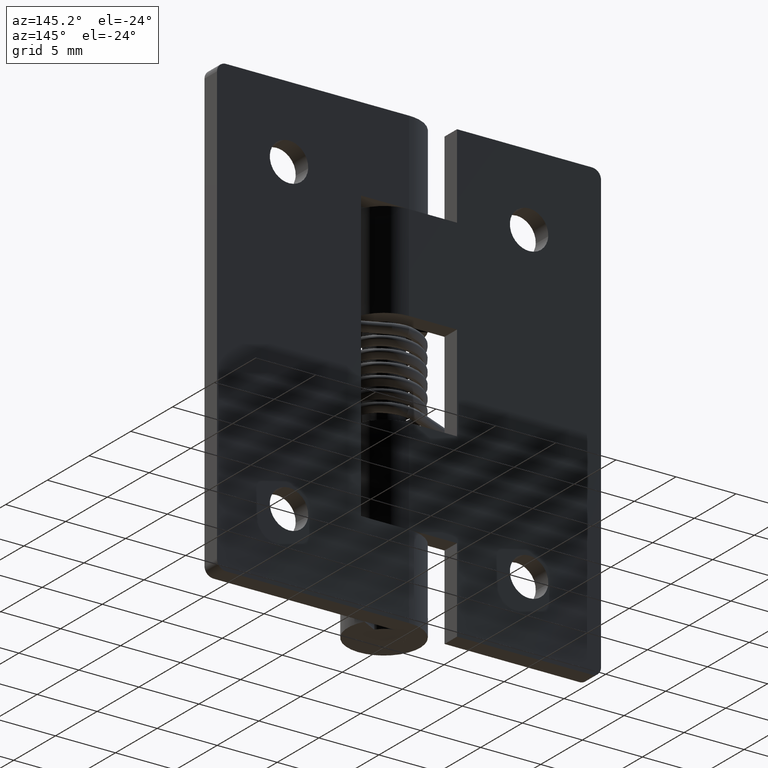
[diagram: clean part render]
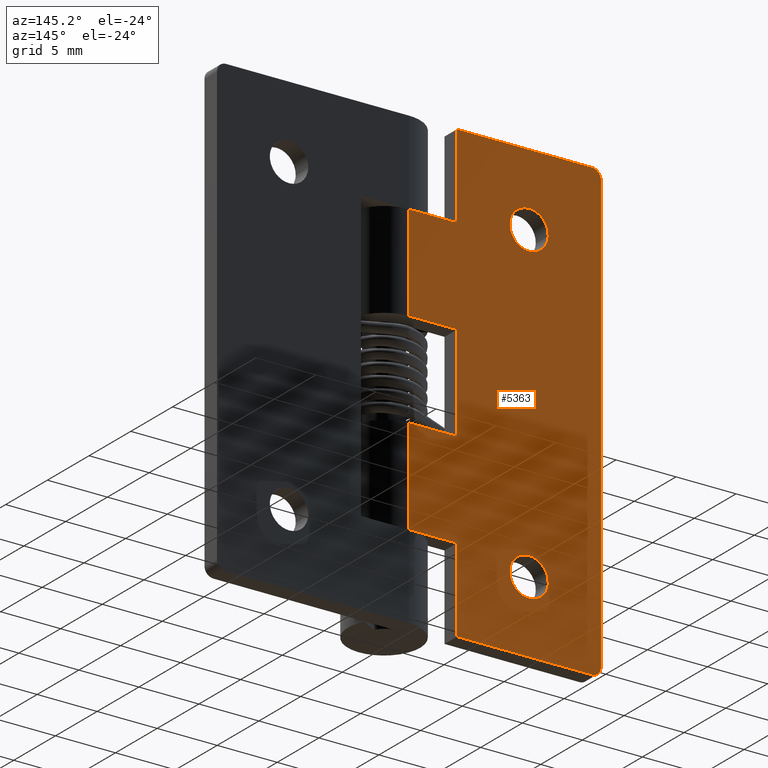
[diagram: same view with one face highlighted and labeled with its STEP entity id]
A machine part, auxiliary view. The second image highlights one B-rep face of the part: STEP entity #5363.
In plain terms, the highlighted face is a freeform B-spline surface patch.
Its self-contained STEP definition (entity closure, byte-faithful):
#4223=CARTESIAN_POINT('',(-8.411184757826064,3.0,6.188854775517521));
#4224=VERTEX_POINT('',#4223);
#4230=CARTESIAN_POINT('',(-10.0,3.0,4.400000000000000));
#4231=VERTEX_POINT('',#4230);
#4232=CARTESIAN_POINT('',(-8.411184757826064,3.000000000000001,6.188854775517521));
#4233=CARTESIAN_POINT('',(-8.400000000000000,3.0,6.094758591510471));
#4234=CARTESIAN_POINT('',(-8.400000000000000,3.0,6.0));
#4235=CARTESIAN_POINT('',(-8.400000000000000,3.0,4.400000000000001));
#4236=CARTESIAN_POINT('',(-10.0,3.0,4.400000000000000));
#4244=(BOUNDED_CURVE()B_SPLINE_CURVE(2,(#4232,#4233,#4234,#4235,#4236),.UNSPECIFIED.,.F.,.U.)B_SPLINE_CURVE_WITH_KNOTS((3,2,3),(0.229562473501453,0.250000000000000,0.500000000000000),.UNSPECIFIED.)CURVE()GEOMETRIC_REPRESENTATION_ITEM()RATIONAL_B_SPLINE_CURVE((0.956026754160070,0.976055948317021,1.0,0.707106781186548,1.0))REPRESENTATION_ITEM(''));
#4245=EDGE_CURVE('',#4224,#4231,#4244,.T.);
#4247=CARTESIAN_POINT('',(-11.597015677470001,3.0,5.902322336662665));
#4248=VERTEX_POINT('',#4247);
#4249=CARTESIAN_POINT('',(-10.0,3.0,4.400000000000000));
#4250=CARTESIAN_POINT('',(-11.505129706895083,3.000000000000000,4.400000000000000));
#4251=CARTESIAN_POINT('',(-11.597015677469999,3.0,5.902322336662665));
#4259=(BOUNDED_CURVE()B_SPLINE_CURVE(2,(#4249,#4250,#4251),.UNSPECIFIED.,.F.,.U.)B_SPLINE_CURVE_WITH_KNOTS((3,3),(0.500000000000000,0.739332962224343),.UNSPECIFIED.)CURVE()GEOMETRIC_REPRESENTATION_ITEM()RATIONAL_B_SPLINE_CURVE((1.0,0.719603993303815,0.976072041635428))REPRESENTATION_ITEM(''));
#4260=EDGE_CURVE('',#4231,#4248,#4259,.T.);
#4334=CARTESIAN_POINT('',(-10.0,3.0,7.600000000000000));
#4335=VERTEX_POINT('',#4334);
#4336=CARTESIAN_POINT('',(-11.597015677469999,3.0,5.902322336662665));
#4337=CARTESIAN_POINT('',(-11.599999999999998,3.000000000000000,5.951115578640466));
#4338=CARTESIAN_POINT('',(-11.600000000000000,3.0,6.0));
#4339=CARTESIAN_POINT('',(-11.600000000000001,3.0,7.600000000000000));
#4340=CARTESIAN_POINT('',(-10.0,3.0,7.600000000000000));
#4348=(BOUNDED_CURVE()B_SPLINE_CURVE(2,(#4336,#4337,#4338,#4339,#4340),.UNSPECIFIED.,.F.,.U.)B_SPLINE_CURVE_WITH_KNOTS((3,2,3),(0.739332962224343,0.750000000000000,1.0),.UNSPECIFIED.)CURVE()GEOMETRIC_REPRESENTATION_ITEM()RATIONAL_B_SPLINE_CURVE((0.976072041635428,0.987502787882733,1.0,0.707106781186548,1.0))REPRESENTATION_ITEM(''));
#4349=EDGE_CURVE('',#4248,#4335,#4348,.T.);
#4351=CARTESIAN_POINT('',(-10.0,3.0,7.600000000000000));
#4352=CARTESIAN_POINT('',(-8.578920758597983,3.000000000000000,7.599999999999999));
#4353=CARTESIAN_POINT('',(-8.411184757826064,3.0,6.188854775517521));
#4361=(BOUNDED_CURVE()B_SPLINE_CURVE(2,(#4351,#4352,#4353),.UNSPECIFIED.,.F.,.U.)B_SPLINE_CURVE_WITH_KNOTS((3,3),(0.0,0.229562473501453),.UNSPECIFIED.)CURVE()GEOMETRIC_REPRESENTATION_ITEM()RATIONAL_B_SPLINE_CURVE((1.0,0.731050832869526,0.956026754160070))REPRESENTATION_ITEM(''));
#4362=EDGE_CURVE('',#4335,#4224,#4361,.T.);
#4409=CARTESIAN_POINT('',(-8.411184757826064,3.0,32.188854775517527));
#4410=VERTEX_POINT('',#4409);
#4416=CARTESIAN_POINT('',(-10.0,3.0,30.399999999999999));
#4417=VERTEX_POINT('',#4416);
#4418=CARTESIAN_POINT('',(-8.411184757826064,3.000000000000000,32.188854775517527));
#4419=CARTESIAN_POINT('',(-8.400000000000000,3.000000000000000,32.094758591510470));
#4420=CARTESIAN_POINT('',(-8.400000000000000,3.0,32.0));
#4421=CARTESIAN_POINT('',(-8.400000000000000,3.0,30.400000000000002));
#4422=CARTESIAN_POINT('',(-10.0,3.0,30.399999999999999));
#4430=(BOUNDED_CURVE()B_SPLINE_CURVE(2,(#4418,#4419,#4420,#4421,#4422),.UNSPECIFIED.,.F.,.U.)B_SPLINE_CURVE_WITH_KNOTS((3,2,3),(0.229562473501453,0.250000000000000,0.500000000000000),.UNSPECIFIED.)CURVE()GEOMETRIC_REPRESENTATION_ITEM()RATIONAL_B_SPLINE_CURVE((0.956026754160069,0.976055948317021,1.0,0.707106781186548,1.0))REPRESENTATION_ITEM(''));
#4431=EDGE_CURVE('',#4410,#4417,#4430,.T.);
#4433=CARTESIAN_POINT('',(-11.597015677470001,3.0,31.902322336662671));
#4434=VERTEX_POINT('',#4433);
#4435=CARTESIAN_POINT('',(-10.0,3.0,30.399999999999999));
#4436=CARTESIAN_POINT('',(-11.505129706895083,3.000000000000000,30.399999999999999));
#4437=CARTESIAN_POINT('',(-11.597015677469999,3.0,31.902322336662671));
#4445=(BOUNDED_CURVE()B_SPLINE_CURVE(2,(#4435,#4436,#4437),.UNSPECIFIED.,.F.,.U.)B_SPLINE_CURVE_WITH_KNOTS((3,3),(0.500000000000000,0.739332962224343),.UNSPECIFIED.)CURVE()GEOMETRIC_REPRESENTATION_ITEM()RATIONAL_B_SPLINE_CURVE((1.0,0.719603993303815,0.976072041635428))REPRESENTATION_ITEM(''));
#4446=EDGE_CURVE('',#4417,#4434,#4445,.T.);
#4520=CARTESIAN_POINT('',(-10.0,3.0,33.600000000000001));
#4521=VERTEX_POINT('',#4520);
#4522=CARTESIAN_POINT('',(-11.597015677469997,3.000000000000000,31.902322336662671));
#4523=CARTESIAN_POINT('',(-11.600000000000001,3.000000000000000,31.951115578640469));
#4524=CARTESIAN_POINT('',(-11.600000000000000,3.0,32.0));
#4525=CARTESIAN_POINT('',(-11.600000000000001,3.0,33.600000000000001));
#4526=CARTESIAN_POINT('',(-10.0,3.0,33.600000000000001));
#4534=(BOUNDED_CURVE()B_SPLINE_CURVE(2,(#4522,#4523,#4524,#4525,#4526),.UNSPECIFIED.,.F.,.U.)B_SPLINE_CURVE_WITH_KNOTS((3,2,3),(0.739332962224344,0.750000000000000,1.0),.UNSPECIFIED.)CURVE()GEOMETRIC_REPRESENTATION_ITEM()RATIONAL_B_SPLINE_CURVE((0.976072041635429,0.987502787882733,1.0,0.707106781186548,1.0))REPRESENTATION_ITEM(''));
#4535=EDGE_CURVE('',#4434,#4521,#4534,.T.);
#4537=CARTESIAN_POINT('',(-10.0,3.0,33.600000000000001));
#4538=CARTESIAN_POINT('',(-8.578920758597985,3.000000000000000,33.599999999999994));
#4539=CARTESIAN_POINT('',(-8.411184757826064,3.000000000000000,32.188854775517527));
#4547=(BOUNDED_CURVE()B_SPLINE_CURVE(2,(#4537,#4538,#4539),.UNSPECIFIED.,.F.,.U.)B_SPLINE_CURVE_WITH_KNOTS((3,3),(0.0,0.229562473501453),.UNSPECIFIED.)CURVE()GEOMETRIC_REPRESENTATION_ITEM()RATIONAL_B_SPLINE_CURVE((1.0,0.731050832869527,0.956026754160069))REPRESENTATION_ITEM(''));
#4548=EDGE_CURVE('',#4521,#4410,#4547,.T.);
#4561=CARTESIAN_POINT('',(0.0,3.0,15.0));
#4562=VERTEX_POINT('',#4561);
#4582=CARTESIAN_POINT('',(-4.0,3.0,15.0));
#4583=VERTEX_POINT('',#4582);
#4584=CARTESIAN_POINT('',(0.0,3.0,15.0));
#4585=CARTESIAN_POINT('',(-4.0,3.0,15.0));
#4586=QUASI_UNIFORM_CURVE('',1,(#4584,#4585),.UNSPECIFIED.,.F.,.U.);
#4587=EDGE_CURVE('',#4562,#4583,#4586,.T.);
#4646=CARTESIAN_POINT('',(-4.0,3.0,23.0));
#4647=VERTEX_POINT('',#4646);
#4653=CARTESIAN_POINT('',(0.0,3.0,23.0));
#4654=VERTEX_POINT('',#4653);
#4655=CARTESIAN_POINT('',(-4.0,3.0,23.0));
#4656=CARTESIAN_POINT('',(0.0,3.0,23.0));
#4657=QUASI_UNIFORM_CURVE('',1,(#4655,#4656),.UNSPECIFIED.,.F.,.U.);
#4658=EDGE_CURVE('',#4647,#4654,#4657,.T.);
#4721=CARTESIAN_POINT('',(-4.0,3.0,15.0));
#4722=CARTESIAN_POINT('',(-4.0,3.0,23.0));
#4723=QUASI_UNIFORM_CURVE('',1,(#4721,#4722),.UNSPECIFIED.,.F.,.U.);
#4724=EDGE_CURVE('',#4583,#4647,#4723,.T.);
#4744=CARTESIAN_POINT('',(-4.0,3.0,31.0));
#4745=VERTEX_POINT('',#4744);
#4751=CARTESIAN_POINT('',(-4.0,3.0,38.0));
#4752=VERTEX_POINT('',#4751);
#4753=CARTESIAN_POINT('',(-4.0,3.0,31.0));
#4754=CARTESIAN_POINT('',(-4.0,3.0,38.0));
#4755=QUASI_UNIFORM_CURVE('',1,(#4753,#4754),.UNSPECIFIED.,.F.,.U.);
#4756=EDGE_CURVE('',#4745,#4752,#4755,.T.);
#4773=CARTESIAN_POINT('',(0.0,3.0,31.0));
#4774=VERTEX_POINT('',#4773);
#4794=CARTESIAN_POINT('',(0.0,3.0,31.0));
#4795=CARTESIAN_POINT('',(-4.0,3.0,31.0));
#4796=QUASI_UNIFORM_CURVE('',1,(#4794,#4795),.UNSPECIFIED.,.F.,.U.);
#4797=EDGE_CURVE('',#4774,#4745,#4796,.T.);
#4850=CARTESIAN_POINT('',(-4.0,3.0,6.999992000000000));
#4851=VERTEX_POINT('',#4850);
#4857=CARTESIAN_POINT('',(0.0,3.0,6.999992000000000));
#4858=VERTEX_POINT('',#4857);
#4859=CARTESIAN_POINT('',(-4.0,3.0,6.999992000000000));
#4860=CARTESIAN_POINT('',(0.0,3.0,6.999992000000000));
#4861=QUASI_UNIFORM_CURVE('',1,(#4859,#4860),.UNSPECIFIED.,.F.,.U.);
#4862=EDGE_CURVE('',#4851,#4858,#4861,.T.);
#4926=CARTESIAN_POINT('',(-4.0,3.0,0.0));
#4927=VERTEX_POINT('',#4926);
#4933=CARTESIAN_POINT('',(-4.0,3.0,0.0));
#4934=CARTESIAN_POINT('',(-4.0,3.0,6.999992000000000));
#4935=QUASI_UNIFORM_CURVE('',1,(#4933,#4934),.UNSPECIFIED.,.F.,.U.);
#4936=EDGE_CURVE('',#4927,#4851,#4935,.T.);
#4973=CARTESIAN_POINT('',(-15.250000000000000,3.0,38.0));
#4974=VERTEX_POINT('',#4973);
#4980=CARTESIAN_POINT('',(-16.0,3.0,37.250000000000000));
#4981=VERTEX_POINT('',#4980);
#4982=CARTESIAN_POINT('',(-15.250000000000000,3.0,38.0));
#4983=CARTESIAN_POINT('',(-15.999999999999998,3.0,38.0));
#4984=CARTESIAN_POINT('',(-16.0,3.0,37.250000000000000));
#4992=(BOUNDED_CURVE()B_SPLINE_CURVE(2,(#4982,#4983,#4984),.UNSPECIFIED.,.F.,.U.)CURVE()GEOMETRIC_REPRESENTATION_ITEM()QUASI_UNIFORM_CURVE()RATIONAL_B_SPLINE_CURVE((1.0,0.707106781186548,1.0))REPRESENTATION_ITEM(''));
#4993=EDGE_CURVE('',#4974,#4981,#4992,.T.);
#5034=CARTESIAN_POINT('',(-16.0,3.0,0.750000000000000));
#5035=VERTEX_POINT('',#5034);
#5041=CARTESIAN_POINT('',(-15.250000000000000,3.0,0.0));
#5042=VERTEX_POINT('',#5041);
#5043=CARTESIAN_POINT('',(-16.0,3.0,0.750000000000000));
#5044=CARTESIAN_POINT('',(-15.999999999999998,3.0,0.0));
#5045=CARTESIAN_POINT('',(-15.250000000000000,3.0,0.0));
#5053=(BOUNDED_CURVE()B_SPLINE_CURVE(2,(#5043,#5044,#5045),.UNSPECIFIED.,.F.,.U.)CURVE()GEOMETRIC_REPRESENTATION_ITEM()QUASI_UNIFORM_CURVE()RATIONAL_B_SPLINE_CURVE((1.0,0.707106781186548,1.0))REPRESENTATION_ITEM(''));
#5054=EDGE_CURVE('',#5035,#5042,#5053,.T.);
#5070=CARTESIAN_POINT('',(-16.0,3.0,0.750000000000000));
#5071=CARTESIAN_POINT('',(-16.0,3.0,37.250000000000000));
#5072=QUASI_UNIFORM_CURVE('',1,(#5070,#5071),.UNSPECIFIED.,.F.,.U.);
#5073=EDGE_CURVE('',#5035,#4981,#5072,.T.);
#5089=CARTESIAN_POINT('',(-15.250000000000000,3.0,0.0));
#5090=CARTESIAN_POINT('',(-4.0,3.0,0.0));
#5091=QUASI_UNIFORM_CURVE('',1,(#5089,#5090),.UNSPECIFIED.,.F.,.U.);
#5092=EDGE_CURVE('',#5042,#4927,#5091,.T.);
#5110=CARTESIAN_POINT('',(-15.250000000000000,3.0,38.0));
#5111=CARTESIAN_POINT('',(-4.0,3.0,38.0));
#5112=QUASI_UNIFORM_CURVE('',1,(#5110,#5111),.UNSPECIFIED.,.F.,.U.);
#5113=EDGE_CURVE('',#4974,#4752,#5112,.T.);
#5255=CARTESIAN_POINT('',(0.0,3.0,6.999992000000000));
#5256=CARTESIAN_POINT('',(0.0,3.0,15.0));
#5257=QUASI_UNIFORM_CURVE('',1,(#5255,#5256),.UNSPECIFIED.,.F.,.U.);
#5258=EDGE_CURVE('',#4858,#4562,#5257,.T.);
#5286=CARTESIAN_POINT('',(0.0,3.0,23.0));
#5287=CARTESIAN_POINT('',(0.0,3.0,31.0));
#5288=QUASI_UNIFORM_CURVE('',1,(#5286,#5287),.UNSPECIFIED.,.F.,.U.);
#5289=EDGE_CURVE('',#4654,#4774,#5288,.T.);
#5330=CARTESIAN_POINT('',(-16.799199968988891,3.0,39.898099926348621));
#5331=CARTESIAN_POINT('',(-16.799199968988891,3.0,-1.898100945588053));
#5332=CARTESIAN_POINT('',(0.799200398142338,3.0,39.898099926348621));
#5333=CARTESIAN_POINT('',(0.799200398142338,3.0,-1.898100945588053));
#5334=B_SPLINE_SURFACE_WITH_KNOTS('',1,1,((#5330,#5332),(#5331,#5333)),.UNSPECIFIED.,.F.,.F.,.U.,(2,2),(2,2),(0.0,41.796200871936684),(0.0,17.598400367131230),.UNSPECIFIED.);
#5335=ORIENTED_EDGE('',*,*,#4658,.F.);
#5336=ORIENTED_EDGE('',*,*,#4724,.F.);
#5337=ORIENTED_EDGE('',*,*,#4587,.F.);
#5338=ORIENTED_EDGE('',*,*,#5258,.F.);
#5339=ORIENTED_EDGE('',*,*,#4862,.F.);
#5340=ORIENTED_EDGE('',*,*,#4936,.F.);
#5341=ORIENTED_EDGE('',*,*,#5092,.F.);
#5342=ORIENTED_EDGE('',*,*,#5054,.F.);
#5343=ORIENTED_EDGE('',*,*,#5073,.T.);
#5344=ORIENTED_EDGE('',*,*,#4993,.F.);
#5345=ORIENTED_EDGE('',*,*,#5113,.T.);
#5346=ORIENTED_EDGE('',*,*,#4756,.F.);
#5347=ORIENTED_EDGE('',*,*,#4797,.F.);
#5348=ORIENTED_EDGE('',*,*,#5289,.F.);
#5349=EDGE_LOOP('',(#5335,#5336,#5337,#5338,#5339,#5340,#5341,#5342,#5343,#5344,#5345,#5346,#5347,#5348));
#5350=FACE_OUTER_BOUND('',#5349,.T.);
#5351=ORIENTED_EDGE('',*,*,#4446,.F.);
#5352=ORIENTED_EDGE('',*,*,#4431,.F.);
#5353=ORIENTED_EDGE('',*,*,#4548,.F.);
#5354=ORIENTED_EDGE('',*,*,#4535,.F.);
#5355=EDGE_LOOP('',(#5351,#5352,#5353,#5354));
#5356=FACE_BOUND('',#5355,.T.);
#5357=ORIENTED_EDGE('',*,*,#4260,.F.);
#5358=ORIENTED_EDGE('',*,*,#4245,.F.);
#5359=ORIENTED_EDGE('',*,*,#4362,.F.);
#5360=ORIENTED_EDGE('',*,*,#4349,.F.);
#5361=EDGE_LOOP('',(#5357,#5358,#5359,#5360));
#5362=FACE_BOUND('',#5361,.T.);
#5363=ADVANCED_FACE('',(#5350,#5356,#5362),#5334,.F.);